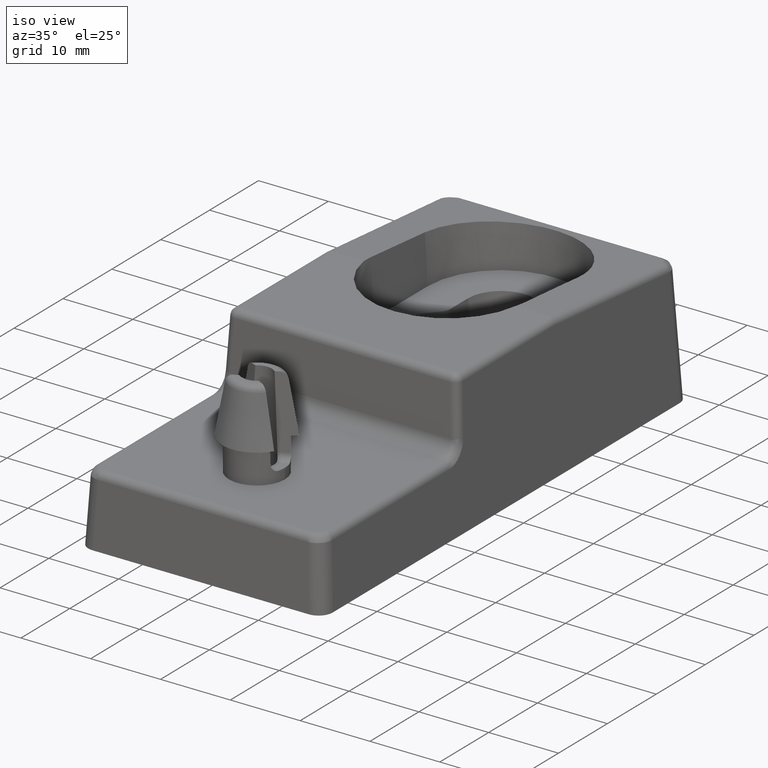
[diagram: clean part render]
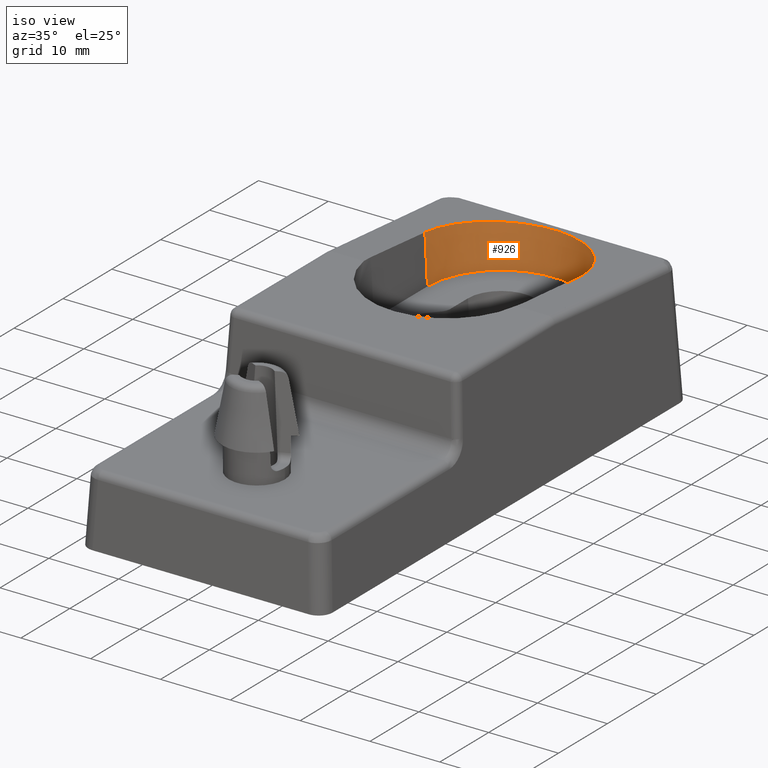
[diagram: same view with one face highlighted and labeled with its STEP entity id]
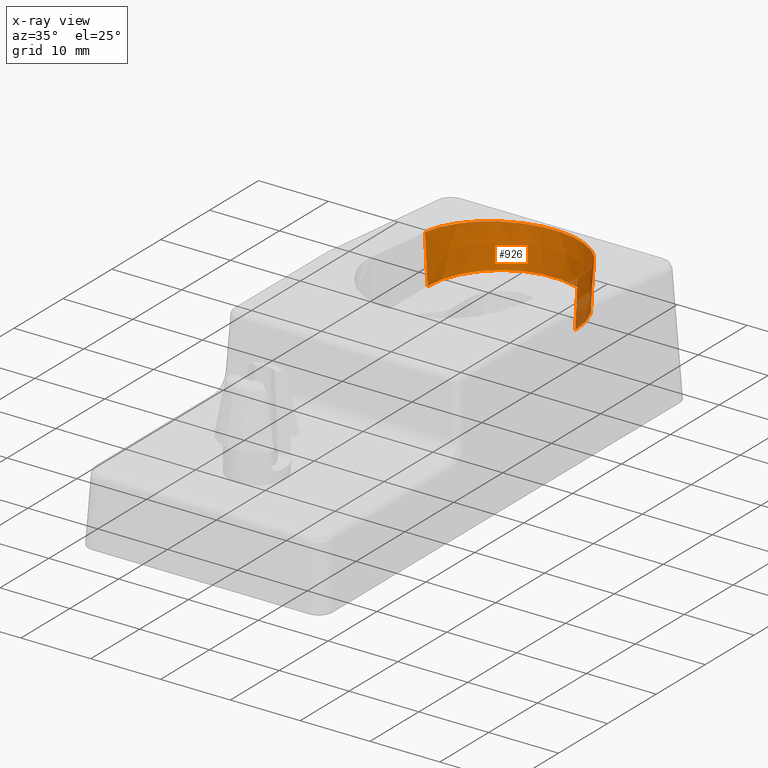
[diagram: x-ray of the same camera — body ghosted, the highlighted face saturated]
A machine part, iso view. The second image highlights one B-rep face of the part: STEP entity #926.
The next image is the same camera in x-ray: the body ghosted, the highlighted face saturated — about 5% of this face is hidden behind the body in this view.
In plain terms, the highlighted conical surface has half-angle 3 deg.
Its self-contained STEP definition (entity closure, byte-faithful):
#8 = DIRECTION ( 'NONE',  ( 0.0000000000000000000, 0.0000000000000000000, 1.000000000000000000 ) ) ;
#69 = CARTESIAN_POINT ( 'NONE',  ( 1.224646799147354400E-016, 24.00000000000000000, 2.000000000000000000 ) ) ;
#79 = CARTESIAN_POINT ( 'NONE',  ( 10.94230408384333600, 24.00000000000000000, 8.899096337491080500 ) ) ;
#147 = VERTEX_POINT ( 'NONE', #915 ) ;
#155 = VECTOR ( 'NONE', #1488, 1000.000000000000000 ) ;
#409 = ORIENTED_EDGE ( 'NONE', *, *, #2566, .F. ) ;
#446 = CARTESIAN_POINT ( 'NONE',  ( 10.58073776573566600, 24.00000000000000000, 2.000000000000000000 ) ) ;
#449 = EDGE_LOOP ( 'NONE', ( #494, #1096, #409, #2754 ) ) ;
#494 = ORIENTED_EDGE ( 'NONE', *, *, #824, .F. ) ;
#524 = CARTESIAN_POINT ( 'NONE',  ( -10.99999999999999600, 24.00000000000000000, 10.00000000000000000 ) ) ;
#662 = CONICAL_SURFACE ( 'NONE', #1969, 10.99999999999999600, 0.05235987755982993200 ) ;
#663 = VERTEX_POINT ( 'NONE', #79 ) ;
#719 = VECTOR ( 'NONE', #755, 1000.000000000000000 ) ;
#736 = DIRECTION ( 'NONE',  ( -0.0000000000000000000, -0.0000000000000000000, 1.000000000000000000 ) ) ;
#755 = DIRECTION ( 'NONE',  ( -0.05233595624294389000, -0.0000000000000000000, 0.9986295347545739400 ) ) ;
#779 = CARTESIAN_POINT ( 'NONE',  ( 10.99999999999999600, 24.00000000000000000, 10.00000000000000000 ) ) ;
#821 = LINE ( 'NONE', #779, #155 ) ;
#824 = EDGE_CURVE ( 'NONE', #872, #663, #3033, .T. ) ;
#872 = VERTEX_POINT ( 'NONE', #2950 ) ;
#915 = CARTESIAN_POINT ( 'NONE',  ( -10.58073776573566600, 24.00000000000000000, 2.000000000000000000 ) ) ;
#920 = CARTESIAN_POINT ( 'NONE',  ( -10.84287306058963700, 45.68574612117927100, 7.001839391786608000 ) ) ;
#926 = ADVANCED_FACE ( 'NONE', ( #2908 ), #662, .F. ) ;
#1054 = LINE ( 'NONE', #524, #719 ) ;
#1096 = ORIENTED_EDGE ( 'NONE', *, *, #1313, .F. ) ;
#1140 = CARTESIAN_POINT ( 'NONE',  ( 10.94230408384333600, 24.00000000000000000, 8.899096337491080500 ) ) ;
#1193 = DIRECTION ( 'NONE',  ( 1.000000000000000000, 0.0000000000000000000, 0.0000000000000000000 ) ) ;
#1261 = VERTEX_POINT ( 'NONE', #446 ) ;
#1313 = EDGE_CURVE ( 'NONE', #147, #872, #1054, .T. ) ;
#1488 = DIRECTION ( 'NONE',  ( 0.05233595624294389000, 8.253491993848155400E-018, 0.9986295347545739400 ) ) ;
#1910 = DIRECTION ( 'NONE',  ( 1.000000000000000000, 0.0000000000000000000, 0.0000000000000000000 ) ) ;
#1969 = AXIS2_PLACEMENT_3D ( 'NONE', #2860, #736, #1193 ) ;
#2105 = CIRCLE ( 'NONE', #2973, 10.58073776573566600 ) ;
#2114 = CARTESIAN_POINT ( 'NONE',  ( -10.94230408384333600, 24.00000000000000000, 8.899096337491078800 ) ) ;
#2396 = EDGE_CURVE ( 'NONE', #1261, #663, #821, .T. ) ;
#2566 = EDGE_CURVE ( 'NONE', #1261, #147, #2105, .T. ) ;
#2591 = CARTESIAN_POINT ( 'NONE',  ( 10.84287306058963400, 45.68574612117927100, 7.001839391786608000 ) ) ;
#2754 = ORIENTED_EDGE ( 'NONE', *, *, #2396, .T. ) ;
#2860 = CARTESIAN_POINT ( 'NONE',  ( 1.224646799147354400E-016, 24.00000000000000000, 10.00000000000000000 ) ) ;
#2908 = FACE_OUTER_BOUND ( 'NONE', #449, .T. ) ;
#2950 = CARTESIAN_POINT ( 'NONE',  ( -10.94230408384333600, 24.00000000000000000, 8.899096337491078800 ) ) ;
#2973 = AXIS2_PLACEMENT_3D ( 'NONE', #69, #8, #1910 ) ;
#3033 =( BOUNDED_CURVE ( )  B_SPLINE_CURVE ( 3, ( #2114, #920, #2591, #1140 ),
 .UNSPECIFIED., .F., .F. ) 
 B_SPLINE_CURVE_WITH_KNOTS ( ( 4, 4 ),
 ( 1.575381429428277300, 4.707803877751309200 ),
 .UNSPECIFIED. ) 
 CURVE ( )  GEOMETRIC_REPRESENTATION_ITEM ( )  RATIONAL_B_SPLINE_CURVE ( ( 1.000000000000000000, 0.3363900577118900100, 0.3363900577118900100, 1.000000000000000000 ) ) 
 REPRESENTATION_ITEM ( '' )  );